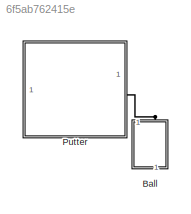
MODEL slx_6f5ab762415e
KIND library
CONFIG SolverName = VariableStepAuto
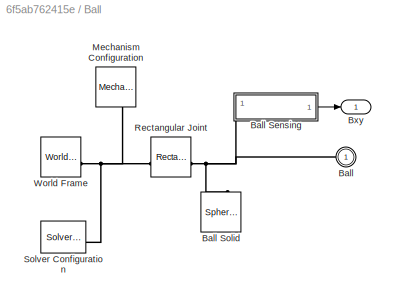
BLOCK [SubSystem] Ball
  NameLocation = left
BLOCK [PMIOPort] Ball/Ball
  NameLocation = top
  Side = Left
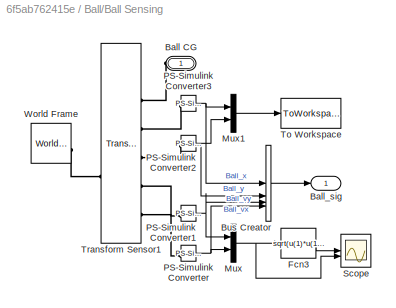
BLOCK [SubSystem] Ball/Ball Sensing
  NameLocation = top
BLOCK [PMIOPort] Ball/Ball Sensing/Ball CG
  Side = Left
BLOCK [Outport] Ball/Ball Sensing/Ball_sig
  VectorParamsAs1DForOutWhenUnconnected = off
BLOCK [BusCreator] Ball/Ball Sensing/Bus Creator
  DisplayOption = bar
  InheritFromInputs = on
  Inputs = 4
BLOCK [Fcn] Ball/Ball Sensing/Fcn3
  Expr = sqrt(u(1)*u(1)+u(2)*u(2))
BLOCK [Mux] Ball/Ball Sensing/Mux
  DisplayOption = bar
  Inputs = 2
BLOCK [Mux] Ball/Ball Sensing/Mux1
  DisplayOption = bar
  Inputs = 2
BLOCK [Reference] Ball/Ball Sensing/PS-Simulink Converter  REF=nesl_utility/PS-Simulink
Converter
  SourceBlock = nesl_utility/PS-Simulink\nConverter
  SourceType = PS-Simulink\nConverter
BLOCK [Reference] Ball/Ball Sensing/PS-Simulink Converter1  REF=nesl_utility/PS-Simulink
Converter
  SourceBlock = nesl_utility/PS-Simulink\nConverter
  SourceType = PS-Simulink\nConverter
BLOCK [Reference] Ball/Ball Sensing/PS-Simulink Converter2  REF=nesl_utility/PS-Simulink
Converter
  SourceBlock = nesl_utility/PS-Simulink\nConverter
  SourceType = PS-Simulink\nConverter
BLOCK [Reference] Ball/Ball Sensing/PS-Simulink Converter3  REF=nesl_utility/PS-Simulink
Converter
  SourceBlock = nesl_utility/PS-Simulink\nConverter
  SourceType = PS-Simulink\nConverter
BLOCK [Scope] Ball/Ball Sensing/Scope
  ActiveDisplayYMaximum = 5
  ActiveDisplayYMinimum = -5
  DataLoggingDecimateData = on
  DataLoggingDecimation = 1
  DataLoggingSaveFormat = Structure With Time
  DataLoggingVariableName = ScopeData8
  Floating = off
  GraphicalSettings = {"GraphicalSettings":{"LegacySettings":true,"Style":{"AxesScalingProperties":{"ScaleAxesLimitsAtStop":false},"Style":{"AxesColor":"[0 0 0]","ChannelNames":["",""],"ColorOrder":"[1 1 0.0666666666666667;0.0745098039215686 0.623529411764706 1;1 0.411764705882353 0.16078431372549;0.392156862745098 0.831372549019608 0.0745098039215686;0.717647058823529 0.274509803921569 1;0.0588235294117647 1 1;1 0.074...<+430ch>
  LayoutDimensionsString = [2 1]
  MultipleDisplayCache = [{"MaxYLimMag":10,"MaxYLimReal":5,"MinYLimMag":0,"MinYLimReal":-5,"PlotAsMagnitudePhase":false,"ShowGrid":true,"ShowLegend":false,"Title":"%<SignalLabel>","YLabel":""},{"MaxYLimMag":10,"MaxYLimReal":5,"MinYLimMag":0,"MinYLimReal":-5,"PlotAsMagnitudePhase":false,"ShowGrid":true,"ShowLegend":false,"Title":"%<SignalLabel>","YLabel":""}]
  NumInputPorts = 2
  WasSavedAsWebScope = on
  WindowPosition = [824 171 834 607]
BLOCK [ToWorkspace] Ball/Ball Sensing/To Workspace
  MaxDataPoints = inf
  SampleTime = -1
  SaveFormat = Structure
  VariableName = Ball_xy
BLOCK [Reference] Ball/Ball Sensing/Transform Sensor1  REF=sm_lib/Frames and
Transforms/Transform
Sensor
  SourceBlock = sm_lib/Frames and\nTransforms/Transform\nSensor
  SourceType = Transform\nSensor
BLOCK [Reference] Ball/Ball Sensing/World Frame  REF=sm_lib/Frames and
Transforms/World Frame
  SourceBlock = sm_lib/Frames and\nTransforms/World Frame
  SourceType = World Frame
BLOCK [Reference] Ball/Ball Solid  REF=sm_lib/Body Elements/Spherical Solid
  NameLocation = right
  SourceBlock = sm_lib/Body Elements/Spherical Solid
  SourceType = Spherical Solid
BLOCK [Outport] Ball/Bxy
  VectorParamsAs1DForOutWhenUnconnected = off
BLOCK [Reference] Ball/Mechanism Configuration  REF=sm_lib/Utilities/Mechanism
Configuration
  NameLocation = right
  SourceBlock = sm_lib/Utilities/Mechanism\nConfiguration
  SourceType = Mechanism\nConfiguration
BLOCK [Reference] Ball/Rectangular Joint  REF=sm_lib/Joints/Rectangular
Joint
  SourceBlock = sm_lib/Joints/Rectangular\nJoint
  SourceType = Rectangular\nJoint
BLOCK [Reference] Ball/Solver Configuration  REF=nesl_utility/Solver
Configuration
  SourceBlock = nesl_utility/Solver\nConfiguration
  SourceType = Solver\nConfiguration
BLOCK [Reference] Ball/World Frame  REF=sm_lib/Frames and
Transforms/World Frame
  SourceBlock = sm_lib/Frames and\nTransforms/World Frame
  SourceType = World Frame
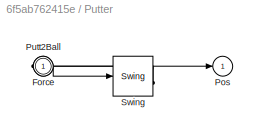
BLOCK [SubSystem] Putter
  AttributesFormatString = %<BlockChoice>
  BlockChoice = Swing
  MemberBlocks = Shoot,Swing
  TemplateBlock = Actuation_Lib/Putter
BLOCK [Inport] Putter/Force
BLOCK [Outport] Putter/Pos
  VectorParamsAs1DForOutWhenUnconnected = off
BLOCK [PMIOPort] Putter/Putt2Ball
  Side = Right
BLOCK [Reference] Putter/Swing  REF=Actuation_Lib/Swing
  SourceBlock = Actuation_Lib/Swing
LINE Ball/Ball Sensing/Bus Creator:1 -> Ball/Ball Sensing/Ball_sig:1
LINE Ball/Ball Sensing/Fcn3:1 -> Ball/Ball Sensing/Scope:1
LINE Ball/Ball Sensing/Mux1:1 -> Ball/Ball Sensing/To Workspace:1
NET Ball/Ball Sensing/Mux:1 -> Ball/Ball Sensing/Fcn3:1, Ball/Ball Sensing/Scope:2
NET Ball/Ball Sensing/PS-Simulink Converter1:1 -> Ball/Ball Sensing/Bus Creator:3, Ball/Ball Sensing/Mux:1
NET Ball/Ball Sensing/PS-Simulink Converter2:1 -> Ball/Ball Sensing/Bus Creator:2, Ball/Ball Sensing/Mux1:2
NET Ball/Ball Sensing/PS-Simulink Converter3:1 -> Ball/Ball Sensing/Bus Creator:1, Ball/Ball Sensing/Mux1:1
NET Ball/Ball Sensing/PS-Simulink Converter:1 -> Ball/Ball Sensing/Bus Creator:4, Ball/Ball Sensing/Mux:2
LINE Ball/Ball Sensing:1 -> Ball/Bxy:1
PLINE Ball/Ball Sensing/Ball CG:RConn1 -- Ball/Ball Sensing/Transform Sensor1:RConn1
PLINE Ball/Ball Sensing/PS-Simulink Converter1:LConn1 -- Ball/Ball Sensing/Transform Sensor1:RConn4
PLINE Ball/Ball Sensing/PS-Simulink Converter2:LConn1 -- Ball/Ball Sensing/Transform Sensor1:RConn3
PLINE Ball/Ball Sensing/PS-Simulink Converter3:LConn1 -- Ball/Ball Sensing/Transform Sensor1:RConn2
PLINE Ball/Ball Sensing/PS-Simulink Converter:LConn1 -- Ball/Ball Sensing/Transform Sensor1:RConn5
PLINE Ball/Ball Sensing/Transform Sensor1:LConn1 -- Ball/Ball Sensing/World Frame:RConn1
PNET net1: Ball/Ball Sensing:LConn1 -- Ball/Ball Solid:RConn1 -- Ball/Ball:RConn1 -- Ball/Rectangular Joint:RConn1
PNET net2: Ball/Mechanism Configuration:RConn1 -- Ball/Rectangular Joint:LConn1 -- Ball/Solver Configuration:RConn1 -- Ball/World Frame:RConn1
PLINE Ball:LConn1 -- Putter:RConn1
note: NET lines group one-source signal fan-out (src -> all destinations, sorted); 1:1 wires keep LINE; PNET lines group multi-terminal physical nets as a canonical sorted terminal list (undirected conserving connections); 2-terminal nets keep the pairwise PLINE form
